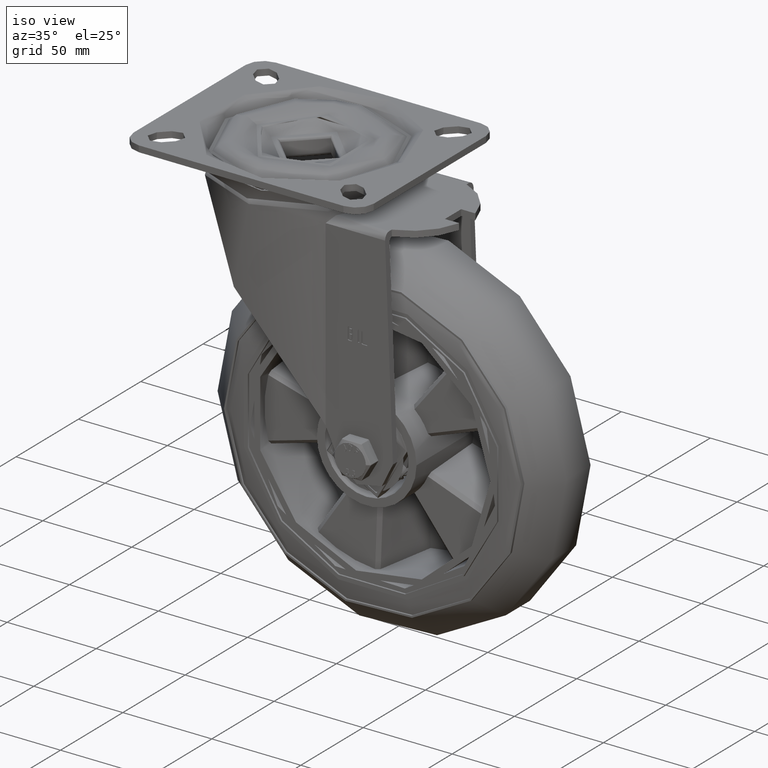
[diagram: clean part render]
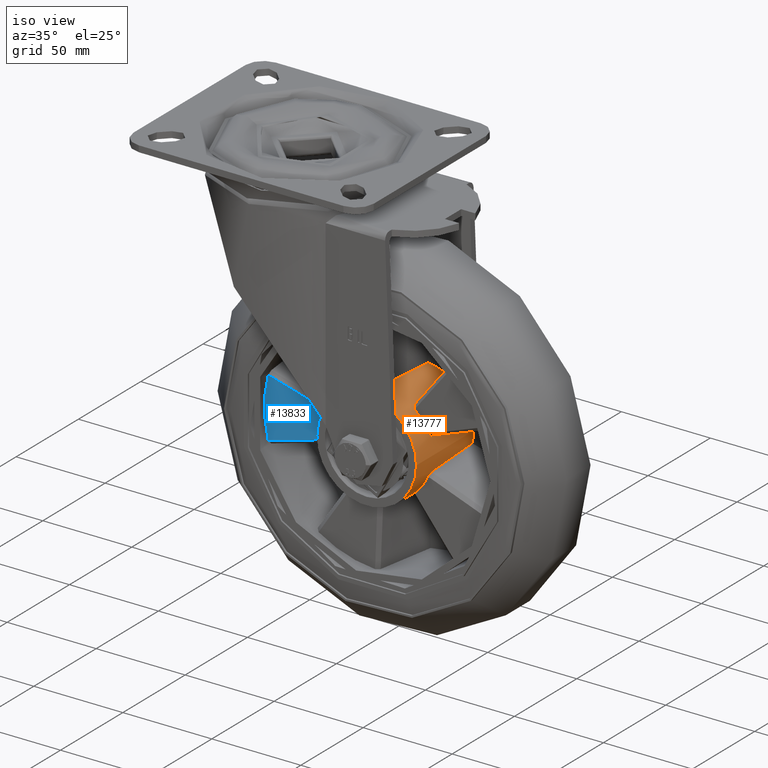
[diagram: same view with the hole feature highlighted: cylindrical wall and planar end face, labeled with their STEP entity ids]
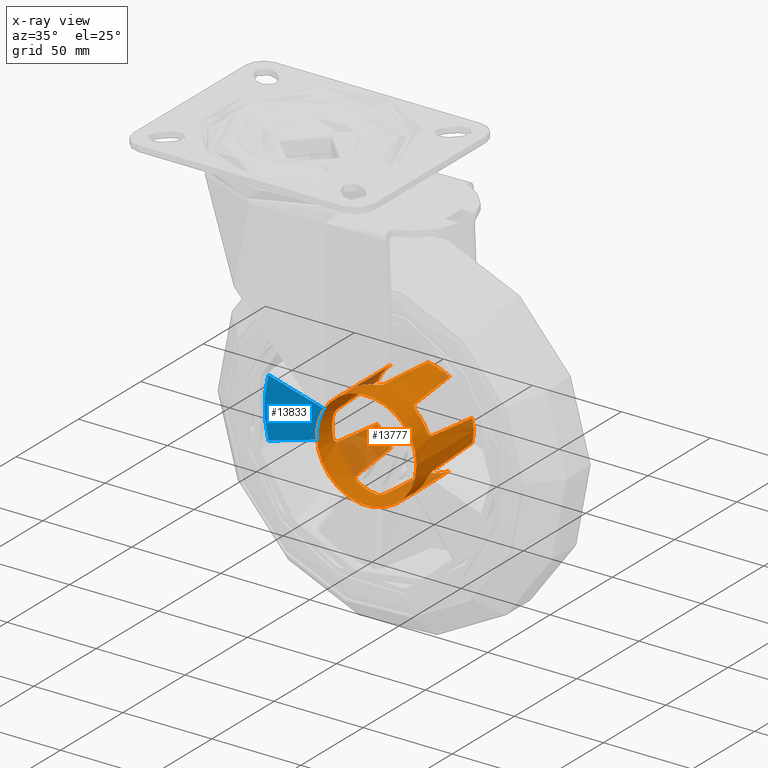
[diagram: x-ray of the same camera — body ghosted, the hole faces saturated]
A machine part, iso view. The highlighted faces form one hole feature of diameter 56 mm: the cylindrical wall (entity #13777, orange) and its adjacent planar end face (entity #13833, blue) — they share a circular edge in the B-rep.
The next image is the same camera in x-ray (body ghosted, the hole faces saturated) — the bore reads through the body.
Wall:
#1374=B_SPLINE_CURVE_WITH_KNOTS('',3,(#23983,#23984,#23985,#23986,#23987,
#23988,#23989),.UNSPECIFIED.,.F.,.F.,(4,3,4),(-0.0355065523448691,-0.0191366703944533,
-0.00369540563655477),.UNSPECIFIED.);
#1375=B_SPLINE_CURVE_WITH_KNOTS('',3,(#23991,#23992,#23993,#23994,#23995,
#23996,#23997,#23998,#23999,#24000),.UNSPECIFIED.,.F.,.F.,(4,2,2,2,4),(0.,
0.0709443199512429,0.148416619684597,0.225894185630976,0.296946894581299),
 .UNSPECIFIED.);
#1376=B_SPLINE_CURVE_WITH_KNOTS('',3,(#24004,#24005,#24006,#24007,#24008,
#24009,#24010,#24011,#24012,#24013),.UNSPECIFIED.,.F.,.F.,(4,2,2,2,4),(8.4978638868772E-11,
0.0709413263589229,0.148423362002564,0.225901291334783,0.296960076767135),
 .UNSPECIFIED.);
#1377=B_SPLINE_CURVE_WITH_KNOTS('',3,(#24015,#24016,#24017,#24018,#24019,
#24020,#24021),.UNSPECIFIED.,.F.,.F.,(4,3,4),(-0.0345787013306948,-0.0193841036322543,
-0.00276710404882036),.UNSPECIFIED.);
#1378=B_SPLINE_CURVE_WITH_KNOTS('',3,(#24025,#24026,#24027,#24028,#24029,
#24030,#24031),.UNSPECIFIED.,.F.,.F.,(4,3,4),(-0.0355065523448954,-0.0191366703947223,
-0.00369540563655434),.UNSPECIFIED.);
#1379=B_SPLINE_CURVE_WITH_KNOTS('',3,(#24033,#24034,#24035,#24036,#24037,
#24038,#24039,#24040,#24041,#24042),.UNSPECIFIED.,.F.,.F.,(4,2,2,2,4),(1.98622527340412E-10,
0.0709443208874662,0.148416619649886,0.225894182805433,0.296946894408632),
 .UNSPECIFIED.);
#1380=B_SPLINE_CURVE_WITH_KNOTS('',3,(#24046,#24047,#24048,#24049,#24050,
#24051,#24052,#24053,#24054,#24055),.UNSPECIFIED.,.F.,.F.,(4,2,2,2,4),(7.32109050376523E-11,
0.0709413262718777,0.148423361868323,0.225901291144999,0.296960076783751),
 .UNSPECIFIED.);
#1381=B_SPLINE_CURVE_WITH_KNOTS('',3,(#24057,#24058,#24059,#24060,#24061,
#24062,#24063),.UNSPECIFIED.,.F.,.F.,(4,3,4),(-0.0360033261767927,-0.0201680024905815,
-0.00419011401342544),.UNSPECIFIED.);
#1382=B_SPLINE_CURVE_WITH_KNOTS('',3,(#24067,#24068,#24069,#24070,#24071,
#24072,#24073),.UNSPECIFIED.,.F.,.F.,(4,3,4),(-0.0355079842542186,-0.01909456198553,
-0.00369692413112095),.UNSPECIFIED.);
#1383=B_SPLINE_CURVE_WITH_KNOTS('',3,(#24075,#24076,#24077,#24078,#24079,
#24080,#24081,#24082,#24083,#24084),.UNSPECIFIED.,.F.,.F.,(4,2,2,2,4),(2.59999848652584E-10,
0.070944320375217,0.148416619660857,0.225894185206572,0.296946894415049),
 .UNSPECIFIED.);
#1384=B_SPLINE_CURVE_WITH_KNOTS('',3,(#24088,#24089,#24090,#24091,#24092,
#24093,#24094,#24095,#24096,#24097),.UNSPECIFIED.,.F.,.F.,(4,2,2,2,4),(7.89132959472521E-11,
0.0709413260763968,0.148423361652627,0.22590129090754,0.296960076760107),
 .UNSPECIFIED.);
#1385=B_SPLINE_CURVE_WITH_KNOTS('',3,(#24099,#24100,#24101,#24102,#24103,
#24104,#24105),.UNSPECIFIED.,.F.,.F.,(4,3,4),(-0.036003326176798,-0.0201680024893143,
-0.00419011401345597),.UNSPECIFIED.);
#1386=B_SPLINE_CURVE_WITH_KNOTS('',3,(#24109,#24110,#24111,#24112,#24113,
#24114,#24115),.UNSPECIFIED.,.F.,.F.,(4,3,4),(-0.0355065523448865,-0.0191366703934272,
-0.00369540563655398),.UNSPECIFIED.);
#1387=B_SPLINE_CURVE_WITH_KNOTS('',3,(#24117,#24118,#24119,#24120,#24121,
#24122,#24123,#24124,#24125,#24126),.UNSPECIFIED.,.F.,.F.,(4,2,2,2,4),(2.4998497788349E-10,
0.0709443203544203,0.148416619670975,0.22589418524382,0.296946894433969),
 .UNSPECIFIED.);
#1388=B_SPLINE_CURVE_WITH_KNOTS('',3,(#24130,#24131,#24132,#24133,#24134,
#24135,#24136,#24137,#24138,#24139),.UNSPECIFIED.,.F.,.F.,(4,2,2,2,4),(6.74432260747033E-11,
0.0709413282051102,0.148423361345513,0.225901290088567,0.296960076838949),
 .UNSPECIFIED.);
#1389=B_SPLINE_CURVE_WITH_KNOTS('',3,(#24141,#24142,#24143,#24144,#24145,
#24146,#24147),.UNSPECIFIED.,.F.,.F.,(4,3,4),(-0.0345787013307198,-0.0193841036325851,
-0.00276710404882058),.UNSPECIFIED.);
#1390=B_SPLINE_CURVE_WITH_KNOTS('',3,(#24151,#24152,#24153,#24154,#24155,
#24156,#24157),.UNSPECIFIED.,.F.,.F.,(4,3,4),(-0.0355065523448942,-0.0191366703940757,
-0.00369540563655314),.UNSPECIFIED.);
#1391=B_SPLINE_CURVE_WITH_KNOTS('',3,(#24159,#24160,#24161,#24162,#24163,
#24164,#24165,#24166,#24167,#24168),.UNSPECIFIED.,.F.,.F.,(4,2,2,2,4),(2.0134717964716E-10,
0.0709443202650988,0.148416619666189,0.225894185313712,0.296946894443185),
 .UNSPECIFIED.);
#1392=B_SPLINE_CURVE_WITH_KNOTS('',3,(#24172,#24173,#24174,#24175,#24176,
#24177,#24178,#24179,#24180,#24181),.UNSPECIFIED.,.F.,.F.,(4,2,2,2,4),(0.,
0.0709413259423618,0.148423361877403,0.225901291535753,0.296960076982357),
 .UNSPECIFIED.);
#1393=B_SPLINE_CURVE_WITH_KNOTS('',3,(#24183,#24184,#24185,#24186,#24187,
#24188,#24189),.UNSPECIFIED.,.F.,.F.,(4,3,4),(-0.0345787013307003,-0.0193841036324443,
-0.00276710404883939),.UNSPECIFIED.);
#2116=FACE_OUTER_BOUND('',#2974,.T.);
#2974=EDGE_LOOP('',(#10309,#10310,#10311,#10312,#10313,#10314,#10315,#10316,
#10317,#10318,#10319,#10320,#10321,#10322,#10323,#10324,#10325,#10326,#10327,
#10328,#10329,#10330,#10331,#10332,#10333,#10334,#10335,#10336,#10337,#10338,
#10339,#10340,#10341,#10342));
#3937=LINE('',#24192,#4768);
#4768=VECTOR('',#16951,28.);
#5588=CIRCLE('',#15046,28.);
#5589=CIRCLE('',#15047,28.);
#5590=CIRCLE('',#15048,28.);
#5591=CIRCLE('',#15049,28.);
#5592=CIRCLE('',#15050,28.);
#5593=CIRCLE('',#15051,28.);
#5594=CIRCLE('',#15052,28.);
#5595=CIRCLE('',#15053,28.);
#5596=CIRCLE('',#15054,28.);
#5597=CIRCLE('',#15055,28.);
#5598=CIRCLE('',#15056,28.);
#5599=CIRCLE('',#15057,28.);
#6313=VERTEX_POINT('',#23979);
#6314=VERTEX_POINT('',#23980);
#6315=VERTEX_POINT('',#23982);
#6316=VERTEX_POINT('',#23990);
#6317=VERTEX_POINT('',#24001);
#6318=VERTEX_POINT('',#24003);
#6319=VERTEX_POINT('',#24014);
#6320=VERTEX_POINT('',#24022);
#6321=VERTEX_POINT('',#24024);
#6322=VERTEX_POINT('',#24032);
#6323=VERTEX_POINT('',#24043);
#6324=VERTEX_POINT('',#24045);
#6325=VERTEX_POINT('',#24056);
#6326=VERTEX_POINT('',#24064);
#6327=VERTEX_POINT('',#24066);
#6328=VERTEX_POINT('',#24074);
#6329=VERTEX_POINT('',#24085);
#6330=VERTEX_POINT('',#24087);
#6331=VERTEX_POINT('',#24098);
#6332=VERTEX_POINT('',#24106);
#6333=VERTEX_POINT('',#24108);
#6334=VERTEX_POINT('',#24116);
#6335=VERTEX_POINT('',#24127);
#6336=VERTEX_POINT('',#24129);
#6337=VERTEX_POINT('',#24140);
#6338=VERTEX_POINT('',#24148);
#6339=VERTEX_POINT('',#24150);
#6340=VERTEX_POINT('',#24158);
#6341=VERTEX_POINT('',#24169);
#6342=VERTEX_POINT('',#24171);
#6343=VERTEX_POINT('',#24182);
#6344=VERTEX_POINT('',#24191);
#7825=EDGE_CURVE('',#6313,#6314,#5588,.T.);
#7826=EDGE_CURVE('',#6315,#6313,#1374,.T.);
#7827=EDGE_CURVE('',#6316,#6315,#1375,.F.);
#7828=EDGE_CURVE('',#6317,#6316,#5589,.T.);
#7829=EDGE_CURVE('',#6318,#6317,#1376,.F.);
#7830=EDGE_CURVE('',#6319,#6318,#1377,.T.);
#7831=EDGE_CURVE('',#6320,#6319,#5590,.T.);
#7832=EDGE_CURVE('',#6321,#6320,#1378,.T.);
#7833=EDGE_CURVE('',#6322,#6321,#1379,.F.);
#7834=EDGE_CURVE('',#6323,#6322,#5591,.T.);
#7835=EDGE_CURVE('',#6324,#6323,#1380,.F.);
#7836=EDGE_CURVE('',#6325,#6324,#1381,.T.);
#7837=EDGE_CURVE('',#6326,#6325,#5592,.T.);
#7838=EDGE_CURVE('',#6327,#6326,#1382,.T.);
#7839=EDGE_CURVE('',#6328,#6327,#1383,.F.);
#7840=EDGE_CURVE('',#6329,#6328,#5593,.T.);
#7841=EDGE_CURVE('',#6330,#6329,#1384,.F.);
#7842=EDGE_CURVE('',#6331,#6330,#1385,.T.);
#7843=EDGE_CURVE('',#6332,#6331,#5594,.T.);
#7844=EDGE_CURVE('',#6333,#6332,#1386,.T.);
#7845=EDGE_CURVE('',#6334,#6333,#1387,.F.);
#7846=EDGE_CURVE('',#6335,#6334,#5595,.T.);
#7847=EDGE_CURVE('',#6336,#6335,#1388,.F.);
#7848=EDGE_CURVE('',#6337,#6336,#1389,.T.);
#7849=EDGE_CURVE('',#6338,#6337,#5596,.T.);
#7850=EDGE_CURVE('',#6339,#6338,#1390,.T.);
#7851=EDGE_CURVE('',#6340,#6339,#1391,.F.);
#7852=EDGE_CURVE('',#6341,#6340,#5597,.T.);
#7853=EDGE_CURVE('',#6342,#6341,#1392,.F.);
#7854=EDGE_CURVE('',#6343,#6342,#1393,.T.);
#7855=EDGE_CURVE('',#6314,#6343,#5598,.T.);
#7856=EDGE_CURVE('',#6314,#6344,#3937,.T.);
#7857=EDGE_CURVE('',#6344,#6344,#5599,.T.);
#10309=ORIENTED_EDGE('',*,*,#7825,.F.);
#10310=ORIENTED_EDGE('',*,*,#7826,.F.);
#10311=ORIENTED_EDGE('',*,*,#7827,.F.);
#10312=ORIENTED_EDGE('',*,*,#7828,.F.);
#10313=ORIENTED_EDGE('',*,*,#7829,.F.);
#10314=ORIENTED_EDGE('',*,*,#7830,.F.);
#10315=ORIENTED_EDGE('',*,*,#7831,.F.);
#10316=ORIENTED_EDGE('',*,*,#7832,.F.);
#10317=ORIENTED_EDGE('',*,*,#7833,.F.);
#10318=ORIENTED_EDGE('',*,*,#7834,.F.);
#10319=ORIENTED_EDGE('',*,*,#7835,.F.);
#10320=ORIENTED_EDGE('',*,*,#7836,.F.);
#10321=ORIENTED_EDGE('',*,*,#7837,.F.);
#10322=ORIENTED_EDGE('',*,*,#7838,.F.);
#10323=ORIENTED_EDGE('',*,*,#7839,.F.);
#10324=ORIENTED_EDGE('',*,*,#7840,.F.);
#10325=ORIENTED_EDGE('',*,*,#7841,.F.);
#10326=ORIENTED_EDGE('',*,*,#7842,.F.);
#10327=ORIENTED_EDGE('',*,*,#7843,.F.);
#10328=ORIENTED_EDGE('',*,*,#7844,.F.);
#10329=ORIENTED_EDGE('',*,*,#7845,.F.);
#10330=ORIENTED_EDGE('',*,*,#7846,.F.);
#10331=ORIENTED_EDGE('',*,*,#7847,.F.);
#10332=ORIENTED_EDGE('',*,*,#7848,.F.);
#10333=ORIENTED_EDGE('',*,*,#7849,.F.);
#10334=ORIENTED_EDGE('',*,*,#7850,.F.);
#10335=ORIENTED_EDGE('',*,*,#7851,.F.);
#10336=ORIENTED_EDGE('',*,*,#7852,.F.);
#10337=ORIENTED_EDGE('',*,*,#7853,.F.);
#10338=ORIENTED_EDGE('',*,*,#7854,.F.);
#10339=ORIENTED_EDGE('',*,*,#7855,.F.);
#10340=ORIENTED_EDGE('',*,*,#7856,.T.);
#10341=ORIENTED_EDGE('',*,*,#7857,.T.);
#10342=ORIENTED_EDGE('',*,*,#7856,.F.);
#13462=CYLINDRICAL_SURFACE('',#15045,28.);
#13777=ADVANCED_FACE('',(#2116),#13462,.T.);
#15045=AXIS2_PLACEMENT_3D('',#23978,#16927,#16928);
#15046=AXIS2_PLACEMENT_3D('',#23981,#16929,#16930);
#15047=AXIS2_PLACEMENT_3D('',#24002,#16931,#16932);
#15048=AXIS2_PLACEMENT_3D('',#24023,#16933,#16934);
#15049=AXIS2_PLACEMENT_3D('',#24044,#16935,#16936);
#15050=AXIS2_PLACEMENT_3D('',#24065,#16937,#16938);
#15051=AXIS2_PLACEMENT_3D('',#24086,#16939,#16940);
#15052=AXIS2_PLACEMENT_3D('',#24107,#16941,#16942);
#15053=AXIS2_PLACEMENT_3D('',#24128,#16943,#16944);
#15054=AXIS2_PLACEMENT_3D('',#24149,#16945,#16946);
#15055=AXIS2_PLACEMENT_3D('',#24170,#16947,#16948);
#15056=AXIS2_PLACEMENT_3D('',#24190,#16949,#16950);
#15057=AXIS2_PLACEMENT_3D('',#24193,#16952,#16953);
#16927=DIRECTION('center_axis',(-3.5232211670514E-15,1.,0.));
#16928=DIRECTION('ref_axis',(-1.,-3.5232211670514E-15,0.));
#16929=DIRECTION('center_axis',(-4.48275391881041E-15,1.,0.));
#16930=DIRECTION('ref_axis',(-1.,-4.48275391881041E-15,0.));
#16931=DIRECTION('center_axis',(-4.48275391881041E-15,1.,0.));
#16932=DIRECTION('ref_axis',(-1.,-4.48275391881041E-15,0.));
#16933=DIRECTION('center_axis',(-4.48275391881041E-15,1.,0.));
#16934=DIRECTION('ref_axis',(-1.,-4.48275391881041E-15,0.));
#16935=DIRECTION('center_axis',(-4.48275391881041E-15,1.,0.));
#16936=DIRECTION('ref_axis',(-1.,-4.48275391881041E-15,0.));
#16937=DIRECTION('center_axis',(-4.48275391881041E-15,1.,0.));
#16938=DIRECTION('ref_axis',(-1.,-4.48275391881041E-15,0.));
#16939=DIRECTION('center_axis',(-4.48275391881041E-15,1.,0.));
#16940=DIRECTION('ref_axis',(-1.,-4.48275391881041E-15,0.));
#16941=DIRECTION('center_axis',(-4.48275391881041E-15,1.,0.));
#16942=DIRECTION('ref_axis',(-1.,-4.48275391881041E-15,0.));
#16943=DIRECTION('center_axis',(-4.48275391881041E-15,1.,0.));
#16944=DIRECTION('ref_axis',(-1.,-4.48275391881041E-15,0.));
#16945=DIRECTION('center_axis',(-4.48275391881041E-15,1.,0.));
#16946=DIRECTION('ref_axis',(-1.,-4.48275391881041E-15,0.));
#16947=DIRECTION('center_axis',(-4.48275391881041E-15,1.,0.));
#16948=DIRECTION('ref_axis',(-1.,-4.48275391881041E-15,0.));
#16949=DIRECTION('center_axis',(-4.48275391881041E-15,1.,0.));
#16950=DIRECTION('ref_axis',(-1.,-4.48275391881041E-15,0.));
#16951=DIRECTION('',(3.5232211670514E-15,-1.,0.));
#16952=DIRECTION('center_axis',(-3.73930100053464E-15,1.,0.));
#16953=DIRECTION('ref_axis',(-1.,-3.73930100053464E-15,0.));
#23978=CARTESIAN_POINT('Origin',(-6.93889390390723E-15,-8.46064909600294E-16,
0.));
#23979=CARTESIAN_POINT('',(27.2679969599278,15.7500000000002,6.36052999311864));
#23980=CARTESIAN_POINT('',(27.9999999999999,15.7500000000002,-3.42901103761259E-15));
#23981=CARTESIAN_POINT('Origin',(-6.2429627284967E-14,15.7500000000001,
0.));
#23982=CARTESIAN_POINT('',(26.5074699500782,-15.9237887332132,9.01964727206062));
#23983=CARTESIAN_POINT('Ctrl Pts',(26.5074699523126,-15.9237887332058,9.0196472729109));
#23984=CARTESIAN_POINT('Ctrl Pts',(26.6602019204636,-10.48971771073,8.57078962747796));
#23985=CARTESIAN_POINT('Ctrl Pts',(26.8016659237505,-5.06039777119971,8.11766188461249));
#23986=CARTESIAN_POINT('Ctrl Pts',(26.9316547517656,0.375471215640353,7.66067690343688));
#23987=CARTESIAN_POINT('Ctrl Pts',(27.0542696805128,5.50297869976824,7.22961539022074));
#23988=CARTESIAN_POINT('Ctrl Pts',(27.1663952189949,10.6246603127595,6.79610327543993));
#23989=CARTESIAN_POINT('Ctrl Pts',(27.2679969598981,15.7500000000098,6.3605299932242));
#23990=CARTESIAN_POINT('',(25.7988986698652,-17.7499999999998,10.8819496149371));
#23991=CARTESIAN_POINT('Ctrl Pts',(26.5074699489457,-15.9237887332118,9.01964727169215));
#23992=CARTESIAN_POINT('Ctrl Pts',(26.5008484831435,-16.1593747616505,9.03910682487439));
#23993=CARTESIAN_POINT('Ctrl Pts',(26.4808935861931,-16.3897171377057,9.09794494059109));
#23994=CARTESIAN_POINT('Ctrl Pts',(26.4110862763734,-16.8393776378935,9.29875459104724));
#23995=CARTESIAN_POINT('Ctrl Pts',(26.359567259628,-17.0495047023181,9.44507832783477));
#23996=CARTESIAN_POINT('Ctrl Pts',(26.2286071571999,-17.3988418451501,9.80288030432846));
#23997=CARTESIAN_POINT('Ctrl Pts',(26.1501746905146,-17.5351621100194,10.0113757846875));
#23998=CARTESIAN_POINT('Ctrl Pts',(25.9795054504162,-17.7081021347469,10.4458199190304));
#23999=CARTESIAN_POINT('Ctrl Pts',(25.8909498718309,-17.749999999997,10.6637148577487));
#24000=CARTESIAN_POINT('Ctrl Pts',(25.7988986698652,-17.7499999999998,10.8819496149371));
#24001=CARTESIAN_POINT('',(18.3216472164271,-17.7499999999998,21.1735033302662));
#24002=CARTESIAN_POINT('Origin',(5.55982818112549E-14,-17.7499999999999,
0.));
#24003=CARTESIAN_POINT('',(16.7694530065388,-15.9237887330092,22.4228777336603));
#24004=CARTESIAN_POINT('Ctrl Pts',(18.3216472164271,-17.7499999999998,21.1735033302662));
#24005=CARTESIAN_POINT('Ctrl Pts',(18.142828596241,-17.7499999998991,21.3282368962554));
#24006=CARTESIAN_POINT('Ctrl Pts',(17.9632527973747,-17.7082380863569,21.4795546283645));
#24007=CARTESIAN_POINT('Ctrl Pts',(17.6030205284596,-17.5356944008701,21.7759724675705));
#24008=CARTESIAN_POINT('Ctrl Pts',(17.4289062252843,-17.3994960351728,21.9150533419108));
#24009=CARTESIAN_POINT('Ctrl Pts',(17.128926723782,-17.0503607096989,22.1503092671107));
#24010=CARTESIAN_POINT('Ctrl Pts',(17.0055930806771,-16.8403139176863,22.2445981781619));
#24011=CARTESIAN_POINT('Ctrl Pts',(16.8358620558324,-16.3904336315629,22.3732905995227));
#24012=CARTESIAN_POINT('Ctrl Pts',(16.7859397250103,-16.1597429615603,22.4105477708166));
#24013=CARTESIAN_POINT('Ctrl Pts',(16.7694530092503,-15.9237887327171,22.4228777316951));
#24014=CARTESIAN_POINT('',(14.4754979602283,15.7500000000001,23.9678943339507));
#24015=CARTESIAN_POINT('Ctrl Pts',(14.4754979603195,15.7500000000097,23.9678943338897));
#24016=CARTESIAN_POINT('Ctrl Pts',(14.8522210483375,10.7067906385833,23.7403710864024));
#24017=CARTESIAN_POINT('Ctrl Pts',(15.2239138374146,5.66690495626863,23.5037641294834));
#24018=CARTESIAN_POINT('Ctrl Pts',(15.5902322289371,0.621306777304809,23.2582169852079));
#24019=CARTESIAN_POINT('Ctrl Pts',(15.9908425432174,-4.89662166686992,22.9896835975449));
#24020=CARTESIAN_POINT('Ctrl Pts',(16.3840309638125,-10.407713676511,22.7111242933034));
#24021=CARTESIAN_POINT('Ctrl Pts',(16.7694530067511,-15.9237887332247,22.4228777380672));
#24022=CARTESIAN_POINT('',(2.37705096613578,15.7500000000001,27.8989180561611));
#24023=CARTESIAN_POINT('Origin',(-6.2429627284967E-14,15.7500000000001,
0.));
#24024=CARTESIAN_POINT('',(-0.386935623292789,-15.9237887329715,27.9973263155638));
#24025=CARTESIAN_POINT('Ctrl Pts',(-0.386935620439498,-15.9237887332248,
27.9973263192419));
#24026=CARTESIAN_POINT('Ctrl Pts',(0.0871501418745737,-10.4897177108271,
28.0038784123045));
#24027=CARTESIAN_POINT('Ctrl Pts',(0.561815015541613,-5.06039777137938,
27.9983945012839));
#24028=CARTESIAN_POINT('Ctrl Pts',(1.03660231666599,0.375471215377623,27.9808050978565));
#24029=CARTESIAN_POINT('Ctrl Pts',(1.48445627448882,5.50297869959266,27.9642134916319));
#24030=CARTESIAN_POINT('Ctrl Pts',(1.93139949304602,10.6246603126708,27.9368886049135));
#24031=CARTESIAN_POINT('Ctrl Pts',(2.37705096602619,15.7500000000097,27.8989180561653));
#24032=CARTESIAN_POINT('',(-2.37705096647165,-17.7499999999999,27.8989180560978));
#24033=CARTESIAN_POINT('Ctrl Pts',(-0.386935627184629,-15.923788732632,
27.9973263155683));
#24034=CARTESIAN_POINT('Ctrl Pts',(-0.407488906682684,-16.159374763823,
27.9970422600123));
#24035=CARTESIAN_POINT('Ctrl Pts',(-0.469613682125127,-16.3897171407494,
27.9962460029042));
#24036=CARTESIAN_POINT('Ctrl Pts',(-0.68216665395521,-16.8393776405123,
27.991908900583));
#24037=CARTESIAN_POINT('Ctrl Pts',(-0.837249047056626,-17.0495047025281,
27.9881279253541));
#24038=CARTESIAN_POINT('Ctrl Pts',(-1.21800783586155,-17.3988418379837,
27.9741443582602));
#24039=CARTESIAN_POINT('Ctrl Pts',(-1.44053577706101,-17.5351620998243,
27.9639792968902));
#24040=CARTESIAN_POINT('Ctrl Pts',(-1.90645639528561,-17.7081021313866,
27.935913825132));
#24041=CARTESIAN_POINT('Ctrl Pts',(-2.14105198364606,-17.7499999999197,
27.9190257036436));
#24042=CARTESIAN_POINT('Ctrl Pts',(-2.37705096647458,-17.7499999999999,
27.8989180561322));
#24043=CARTESIAN_POINT('',(-14.475497959957,-17.75,23.9678943341997));
#24044=CARTESIAN_POINT('Origin',(5.55982818112549E-14,-17.7499999999999,
0.));
#24045=CARTESIAN_POINT('',(-16.1433780165992,-15.9237887319604,22.8777478423053));
#24046=CARTESIAN_POINT('Ctrl Pts',(-14.4754979599193,-17.75,23.9678943341373));
#24047=CARTESIAN_POINT('Ctrl Pts',(-14.6779163184463,-17.7499999999132,
23.8456430218168));
#24048=CARTESIAN_POINT('Ctrl Pts',(-14.8773200070932,-17.7082380864355,
23.7216160389994));
#24049=CARTESIAN_POINT('Ctrl Pts',(-15.2705480172962,-17.5356944012161,
23.4706129422546));
#24050=CARTESIAN_POINT('Ctrl Pts',(-15.4566260676728,-17.399496035672,23.347998753483));
#24051=CARTESIAN_POINT('Ctrl Pts',(-15.7730665120906,-17.0503607105517,
23.1353993728757));
#24052=CARTESIAN_POINT('Ctrl Pts',(-15.900852786988,-16.8403139187523,23.0472389838778));
#24053=CARTESIAN_POINT('Ctrl Pts',(-16.075696324279,-16.3904336322816,22.9255833318006));
#24054=CARTESIAN_POINT('Ctrl Pts',(-16.1265568485369,-16.1597429612571,
22.8896174727894));
#24055=CARTESIAN_POINT('Ctrl Pts',(-16.1433780132827,-15.9237887317413,
22.877747841959));
#24056=CARTESIAN_POINT('',(-18.3216472164271,15.75,21.1735033302661));
#24057=CARTESIAN_POINT('Ctrl Pts',(-18.3216472163409,15.7500000000096,21.173503330334));
#24058=CARTESIAN_POINT('Ctrl Pts',(-17.9748259479422,10.4943346513522,21.4736113528245));
#24059=CARTESIAN_POINT('Ctrl Pts',(-17.6203210924994,5.24243940032904,21.7654660484705));
#24060=CARTESIAN_POINT('Ctrl Pts',(-17.2584088496564,-0.0159133482190573,
22.0487487689199));
#24061=CARTESIAN_POINT('Ctrl Pts',(-16.8932383252486,-5.32160683795857,
22.3345818724635));
#24062=CARTESIAN_POINT('Ctrl Pts',(-16.5214328281474,-10.6207300239485,
22.610978533267));
#24063=CARTESIAN_POINT('Ctrl Pts',(-16.1433780231538,-15.9237887323881,
22.8777478430911));
#24064=CARTESIAN_POINT('',(-25.7988986698652,15.75,10.881949614937));
#24065=CARTESIAN_POINT('Origin',(-6.2429627284967E-14,15.7500000000001,
0.));
#24066=CARTESIAN_POINT('',(-26.7466093147404,-15.9237887329229,8.28365198211445));
#24067=CARTESIAN_POINT('Ctrl Pts',(-26.746609317055,-15.9237887332253,8.28365198645958));
#24068=CARTESIAN_POINT('Ctrl Pts',(-26.6059656937682,-10.4752103789686,
8.73776817333504));
#24069=CARTESIAN_POINT('Ctrl Pts',(-26.453635183499,-5.03145283799282,9.18869515858751));
#24070=CARTESIAN_POINT('Ctrl Pts',(-26.289693994027,0.418874525426292,9.63597363979143));
#24071=CARTESIAN_POINT('Ctrl Pts',(-26.1358987023695,5.53189517133994,10.055571208227));
#24072=CARTESIAN_POINT('Ctrl Pts',(-25.9722337523319,10.6391357282788,10.471007327278));
#24073=CARTESIAN_POINT('Ctrl Pts',(-25.7988986699031,15.7500000000095,10.8819496148341));
#24074=CARTESIAN_POINT('',(-27.2679969601238,-17.75,6.36052999276597));
#24075=CARTESIAN_POINT('Ctrl Pts',(-26.746609316164,-15.9237887325224,8.28365197775027));
#24076=CARTESIAN_POINT('Ctrl Pts',(-26.752690475827,-16.159374761883,8.26401686969253));
#24077=CARTESIAN_POINT('Ctrl Pts',(-26.7711308013589,-16.3897171365196,
8.20468664129158));
#24078=CARTESIAN_POINT('Ctrl Pts',(-26.8326884519957,-16.8393776370091,
8.00119651554907));
#24079=CARTESIAN_POINT('Ctrl Pts',(-26.8770156260862,-17.0495047008731,
7.85253600872906));
#24080=CARTESIAN_POINT('Ctrl Pts',(-26.9813774019372,-17.3988418432098,
7.486091714738));
#24081=CARTESIAN_POINT('Ctrl Pts',(-27.040474771675,-17.5351621081318,7.27131388185639));
#24082=CARTESIAN_POINT('Ctrl Pts',(-27.1577603110837,-17.708102134219,6.81952433202851));
#24083=CARTESIAN_POINT('Ctrl Pts',(-27.2141927746836,-17.7499999999061,
6.59119196017969));
#24084=CARTESIAN_POINT('Ctrl Pts',(-27.267996960016,-17.7500000000001,6.36052999274081));
#24085=CARTESIAN_POINT('',(-27.2679969600785,-17.75,-6.36052999275316));
#24086=CARTESIAN_POINT('Origin',(5.55982818112549E-14,-17.7499999999999,
0.));
#24087=CARTESIAN_POINT('',(-26.7466093174251,-15.9237887318943,-8.28365198104475));
#24088=CARTESIAN_POINT('Ctrl Pts',(-27.2679969600165,-17.7500000000001,
-6.36052999273869));
#24089=CARTESIAN_POINT('Ctrl Pts',(-27.2142797657171,-17.7499999999065,
-6.59081902408178));
#24090=CARTESIAN_POINT('Ctrl Pts',(-27.1579422242228,-17.7082380866623,
-6.81878964631596));
#24091=CARTESIAN_POINT('Ctrl Pts',(-27.0407382314292,-17.5356944021164,
-7.27033592986028));
#24092=CARTESIAN_POINT('Ctrl Pts',(-26.981626488045,-17.3994960367987,-7.48519654038437));
#24093=CARTESIAN_POINT('Ctrl Pts',(-26.8772179367423,-17.0503607120667,
-7.85184610892208));
#24094=CARTESIAN_POINT('Ctrl Pts',(-26.8328605548652,-16.8403139204441,
-8.00062113692661));
#24095=CARTESIAN_POINT('Ctrl Pts',(-26.7711887784139,-16.3904336335587,
-8.20450088697621));
#24096=CARTESIAN_POINT('Ctrl Pts',(-26.7526999801083,-16.1597429618992,
-8.26398618186354));
#24097=CARTESIAN_POINT('Ctrl Pts',(-26.7466093161417,-15.9237887316588,
-8.28365197782226));
#24098=CARTESIAN_POINT('',(-25.7988986698652,15.75,-10.8819496149371));
#24099=CARTESIAN_POINT('Ctrl Pts',(-25.7988986699031,15.7500000000095,-10.8819496148341));
#24100=CARTESIAN_POINT('Ctrl Pts',(-25.9771446943534,10.4943346509347,-10.4593645084024));
#24101=CARTESIAN_POINT('Ctrl Pts',(-26.1451669795513,5.24243939949126,-10.0320222946979));
#24102=CARTESIAN_POINT('Ctrl Pts',(-26.3027478232886,-0.0159133494786369,
-9.60028412294832));
#24103=CARTESIAN_POINT('Ctrl Pts',(-26.4617473610851,-5.32160683878645,
-9.16465902963629));
#24104=CARTESIAN_POINT('Ctrl Pts',(-26.6097219892055,-10.6207300243462,
-8.72563972348254));
#24105=CARTESIAN_POINT('Ctrl Pts',(-26.7466093201019,-15.9237887323548,
-8.28365198739931));
#24106=CARTESIAN_POINT('',(-18.321647216427,15.75,-21.1735033302662));
#24107=CARTESIAN_POINT('Origin',(-6.2429627284967E-14,15.7500000000001,
0.));
#24108=CARTESIAN_POINT('',(-16.1433780166806,-15.9237887329447,-22.8777478394829));
#24109=CARTESIAN_POINT('Ctrl Pts',(-16.1433780214056,-15.9237887332249,
-22.8777478406088));
#24110=CARTESIAN_POINT('Ctrl Pts',(-16.5307726836131,-10.489717710401,-22.6043879758135));
#24111=CARTESIAN_POINT('Ctrl Pts',(-16.9115612710494,-5.0603977705256,-22.3209503860563));
#24112=CARTESIAN_POINT('Ctrl Pts',(-17.2853334744696,0.375471216660717,
-22.0276472861614));
#24113=CARTESIAN_POINT('Ctrl Pts',(-17.6379026358652,5.50297870044789,-21.7509824431943));
#24114=CARTESIAN_POINT('Ctrl Pts',(-17.9834261297356,10.6246603130996,-21.4661695130127));
#24115=CARTESIAN_POINT('Ctrl Pts',(-18.3216472163409,15.7500000000096,-21.173503330334));
#24116=CARTESIAN_POINT('',(-14.4754979599804,-17.75,-23.9678943342347));
#24117=CARTESIAN_POINT('Ctrl Pts',(-16.1433780132235,-15.9237887325716,
-22.8777478420008));
#24118=CARTESIAN_POINT('Ctrl Pts',(-16.1265830973704,-16.1593747618763,
-22.8895989506497));
#24119=CARTESIAN_POINT('Ctrl Pts',(-16.0758550709475,-16.3897171365432,
-22.9254707913087));
#24120=CARTESIAN_POINT('Ctrl Pts',(-15.9013468209631,-16.8393776370285,
-23.046897503173));
#24121=CARTESIAN_POINT('Ctrl Pts',(-15.7736601272732,-17.0495047009401,
-23.1349937739905));
#24122=CARTESIAN_POINT('Ctrl Pts',(-15.4574004557682,-17.3988418433259,
-23.3474852354014));
#24123=CARTESIAN_POINT('Ctrl Pts',(-15.2713966897497,-17.5351621082513,
-23.4700601744098));
#24124=CARTESIAN_POINT('Ctrl Pts',(-14.8779625192391,-17.7081021342538,
-23.7212159997226));
#24125=CARTESIAN_POINT('Ctrl Pts',(-14.6782441194134,-17.7499999999128,
-23.8454450452167));
#24126=CARTESIAN_POINT('Ctrl Pts',(-14.4754979599209,-17.75,-23.9678943341363));
#24127=CARTESIAN_POINT('',(-2.37705096647099,-17.7499999999999,-27.8989180560819));
#24128=CARTESIAN_POINT('Origin',(5.55982818112549E-14,-17.7499999999999,
0.));
#24129=CARTESIAN_POINT('',(-0.386935623292757,-15.9237887329715,-27.9973263155638));
#24130=CARTESIAN_POINT('Ctrl Pts',(-2.37705096647527,-17.7499999999999,
-27.8989180561322));
#24131=CARTESIAN_POINT('Ctrl Pts',(-2.14143354953726,-17.7499999999199,
-27.918993193366));
#24132=CARTESIAN_POINT('Ctrl Pts',(-1.90721133891027,-17.7082380841476,
-27.9358598043136));
#24133=CARTESIAN_POINT('Ctrl Pts',(-1.44154728072713,-17.5356943951087,
-27.9639276580905));
#24134=CARTESIAN_POINT('Ctrl Pts',(-1.21893617156422,-17.3994960332822,
-27.974104629032));
#24135=CARTESIAN_POINT('Ctrl Pts',(-0.837967700204139,-17.0503607161118,
-27.9881071433989));
#24136=CARTESIAN_POINT('Ctrl Pts',(-0.682767055942724,-16.8403139265681,
-27.9918947783262));
#24137=CARTESIAN_POINT('Ctrl Pts',(-0.469808261423242,-16.3904336398091,
-27.9962437411135));
#24138=CARTESIAN_POINT('Ctrl Pts',(-0.407521029795875,-16.1597429657323,
-27.9970418160565));
#24139=CARTESIAN_POINT('Ctrl Pts',(-0.386935627184598,-15.923788732632,
-27.9973263155683));
#24140=CARTESIAN_POINT('',(2.37705096613583,15.7500000000001,-27.8989180561611));
#24141=CARTESIAN_POINT('Ctrl Pts',(2.37705096602623,15.7500000000097,-27.8989180561653));
#24142=CARTESIAN_POINT('Ctrl Pts',(1.93854077622868,10.706790638688,-27.9362801576671));
#24143=CARTESIAN_POINT('Ctrl Pts',(1.49876091332119,5.66690495647921,-27.9633366483349));
#24144=CARTESIAN_POINT('Ctrl Pts',(1.05807411908906,0.621306777621753,-27.9800013838763));
#24145=CARTESIAN_POINT('Ctrl Pts',(0.576133601688929,-4.8966216666575,-27.9982261443509));
#24146=CARTESIAN_POINT('Ctrl Pts',(0.0943044365049435,-10.4077136764028,
-28.0039772882765));
#24147=CARTESIAN_POINT('Ctrl Pts',(-0.386935620440477,-15.9237887332248,
-27.997326319268));
#24148=CARTESIAN_POINT('',(14.4754979602283,15.7500000000001,-23.9678943339507));
#24149=CARTESIAN_POINT('Origin',(-6.2429627284967E-14,15.7500000000001,
0.));
#24150=CARTESIAN_POINT('',(16.7694530065388,-15.9237887330092,-22.4228777336603));
#24151=CARTESIAN_POINT('Ctrl Pts',(16.769453006735,-15.9237887332247,-22.4228777380467));
#24152=CARTESIAN_POINT('Ctrl Pts',(16.3897607918907,-10.4897177106158,-22.7068391121041));
#24153=CARTESIAN_POINT('Ctrl Pts',(16.0025254804229,-5.06039777095384,-22.9814035474261));
#24154=CARTESIAN_POINT('Ctrl Pts',(15.6080756931524,0.375471216018202,-23.2462463947188));
#24155=CARTESIAN_POINT('Ctrl Pts',(15.2360019288399,5.50297870001961,-23.496065454897));
#24156=CARTESIAN_POINT('Ctrl Pts',(14.8583561040884,10.6246603128848,-23.7366657896422));
#24157=CARTESIAN_POINT('Ctrl Pts',(14.4754979603195,15.7500000000097,-23.9678943338896));
#24158=CARTESIAN_POINT('',(18.3216472164271,-17.7499999999998,-21.1735033302661));
#24159=CARTESIAN_POINT('Ctrl Pts',(16.7694530092503,-15.9237887327171,-22.4228777316951));
#24160=CARTESIAN_POINT('Ctrl Pts',(16.7859139979689,-16.1593747618348,-22.4105670113627));
#24161=CARTESIAN_POINT('Ctrl Pts',(16.8357059682476,-16.3897171367525,-22.3734067995016));
#24162=CARTESIAN_POINT('Ctrl Pts',(17.005115648955,-16.8393776371839,-22.2449625085779));
#24163=CARTESIAN_POINT('Ctrl Pts',(17.1283575398878,-17.049504701217,-22.1507484911725));
#24164=CARTESIAN_POINT('Ctrl Pts',(17.4281785424685,-17.3988418437143,-21.91563114216));
#24165=CARTESIAN_POINT('Ctrl Pts',(17.6022325618644,-17.5351621086339,-21.7766087875105));
#24166=CARTESIAN_POINT('Ctrl Pts',(17.9626737910373,-17.7081021343621,-21.4800420741227));
#24167=CARTESIAN_POINT('Ctrl Pts',(18.1425390136354,-17.7499999998989,-21.3284874750216));
#24168=CARTESIAN_POINT('Ctrl Pts',(18.3216472164271,-17.7499999999998,-21.1735033302661));
#24169=CARTESIAN_POINT('',(25.7988986698652,-17.7499999999998,-10.8819496149371));
#24170=CARTESIAN_POINT('Origin',(5.55982818112549E-14,-17.7499999999999,
0.));
#24171=CARTESIAN_POINT('',(26.507469950084,-15.9237887332131,-9.0196472720627));
#24172=CARTESIAN_POINT('Ctrl Pts',(25.7988986698652,-17.7499999999998,-10.8819496149371));
#24173=CARTESIAN_POINT('Ctrl Pts',(25.8908010430226,-17.749999999997,-10.6640677007118));
#24174=CARTESIAN_POINT('Ctrl Pts',(25.9792207843931,-17.7082380869109,-10.4465212166819));
#24175=CARTESIAN_POINT('Ctrl Pts',(26.1498130089059,-17.5356944029185,-10.0123218203106));
#24176=CARTESIAN_POINT('Ctrl Pts',(26.2282825024604,-17.3994960374209,-9.80375092299209));
#24177=CARTESIAN_POINT('Ctrl Pts',(26.3593254199206,-17.0503607118508,-9.44575538241858));
#24178=CARTESIAN_POINT('Ctrl Pts',(26.4108873118291,-16.84031391954,-9.29932124058243));
#24179=CARTESIAN_POINT('Ctrl Pts',(26.4808313070855,-16.390433633389,-9.09812929670108));
#24180=CARTESIAN_POINT('Ctrl Pts',(26.5008381343768,-16.159742961825,-9.03913723843889));
#24181=CARTESIAN_POINT('Ctrl Pts',(26.5074699489457,-15.9237887332117,-9.01964727169207));
#24182=CARTESIAN_POINT('',(27.2679969599279,15.7500000000002,-6.36052999311863));
#24183=CARTESIAN_POINT('Ctrl Pts',(27.2679969598981,15.7500000000098,-6.36052999322419));
#24184=CARTESIAN_POINT('Ctrl Pts',(27.1680233291389,10.7067906386459,-6.78912349100618));
#24185=CARTESIAN_POINT('Ctrl Pts',(27.0578561294732,5.66690495639314,-7.21573991078795));
#24186=CARTESIAN_POINT('Ctrl Pts',(26.9375255261867,0.621306777491579,-7.64000764458039));
#24187=CARTESIAN_POINT('Ctrl Pts',(26.8059304932404,-4.89662166673884,-8.10399207482135));
#24188=CARTESIAN_POINT('Ctrl Pts',(26.662506755721,-10.4077136764354,-8.5640160433167));
#24189=CARTESIAN_POINT('Ctrl Pts',(26.5074699523371,-15.9237887332056,-9.01964727291992));
#24190=CARTESIAN_POINT('Origin',(-6.2429627284967E-14,15.7500000000001,
0.));
#24191=CARTESIAN_POINT('',(28.0000000000001,-29.9999999999999,-3.42901103761259E-15));
#24192=CARTESIAN_POINT('',(28.,9.78041277678389E-14,-3.42901103761259E-15));
#24193=CARTESIAN_POINT('Origin',(9.87577411076348E-14,-30.,0.));
End face:
#1004=PLANE('',#15084);
#1420=B_SPLINE_CURVE_WITH_KNOTS('',3,(#27251,#27252,#27253,#27254,#27255,
#27256,#27257,#27258,#27259,#27260,#27261,#27262,#27263,#27264,#27265,#27266),
 .UNSPECIFIED.,.F.,.F.,(4,2,2,2,2,2,2,4),(5.63375231610232E-6,0.00362204274253389,
0.0127799886328436,0.0185037048142872,0.0220810274276894,0.0256583500410916,
0.0313820662225352,0.0380227473806273),.UNSPECIFIED.);
#1422=B_SPLINE_CURVE_WITH_KNOTS('',3,(#27535,#27536,#27537,#27538,#27539,
#27540,#27541,#27542,#27543,#27544,#27545,#27546,#27547,#27548,#27549),
 .UNSPECIFIED.,.F.,.F.,(4,2,2,2,2,2,1,4),(4.76014956219244E-7,0.00664115717308033,
0.0123648733545397,0.0159421959679519,0.019519518581364,0.0252432347628234,
0.0344011806531584,0.0380175896434079),.UNSPECIFIED.);
#2172=FACE_OUTER_BOUND('',#3034,.T.);
#3034=EDGE_LOOP('',(#10557,#10558,#10559,#10560));
#5558=CIRCLE('',#15013,66.);
#5593=CIRCLE('',#15051,28.);
#6233=VERTEX_POINT('',#23429);
#6234=VERTEX_POINT('',#23440);
#6328=VERTEX_POINT('',#24074);
#6329=VERTEX_POINT('',#24085);
#7743=EDGE_CURVE('',#6234,#6233,#5558,.T.);
#7840=EDGE_CURVE('',#6329,#6328,#5593,.T.);
#7893=EDGE_CURVE('',#6234,#6328,#1420,.T.);
#7895=EDGE_CURVE('',#6329,#6233,#1422,.T.);
#10557=ORIENTED_EDGE('',*,*,#7893,.F.);
#10558=ORIENTED_EDGE('',*,*,#7743,.T.);
#10559=ORIENTED_EDGE('',*,*,#7895,.F.);
#10560=ORIENTED_EDGE('',*,*,#7840,.T.);
#13833=ADVANCED_FACE('',(#2172),#1004,.T.);
#15013=AXIS2_PLACEMENT_3D('',#23441,#16861,#16862);
#15051=AXIS2_PLACEMENT_3D('',#24086,#16939,#16940);
#15084=AXIS2_PLACEMENT_3D('',#29873,#17009,#17010);
#16861=DIRECTION('center_axis',(3.38669239203968E-15,-1.,0.));
#16862=DIRECTION('ref_axis',(-1.,-3.38669239203968E-15,0.));
#16939=DIRECTION('center_axis',(-4.48275391881041E-15,1.,0.));
#16940=DIRECTION('ref_axis',(-1.,-4.48275391881041E-15,0.));
#17009=DIRECTION('center_axis',(4.48275391881041E-15,-1.,0.));
#17010=DIRECTION('ref_axis',(1.,4.48275391881041E-15,0.));
#23429=CARTESIAN_POINT('',(-63.8541855057228,-17.7500000000002,-16.6926029548475));
#23440=CARTESIAN_POINT('',(-63.8541855057659,-17.7500000000002,16.6926029548597));
#23441=CARTESIAN_POINT('Origin',(5.42709575815677E-14,-17.7499999999999,
0.));
#24074=CARTESIAN_POINT('',(-27.2679969601238,-17.75,6.36052999276597));
#24085=CARTESIAN_POINT('',(-27.2679969600785,-17.75,-6.36052999275316));
#24086=CARTESIAN_POINT('Origin',(5.55982818112549E-14,-17.7499999999999,
0.));
#27251=CARTESIAN_POINT('Ctrl Pts',(-63.8541855062207,-17.7500000000002,
16.6926029539206));
#27252=CARTESIAN_POINT('Ctrl Pts',(-62.6940523971521,-17.7500000000002,
16.3651151238158));
#27253=CARTESIAN_POINT('Ctrl Pts',(-61.5339226708915,-17.7500000000002,
16.037615309941));
#27254=CARTESIAN_POINT('Ctrl Pts',(-57.4359720649482,-17.7500000000002,
14.8807349181161));
#27255=CARTESIAN_POINT('Ctrl Pts',(-54.4981695814935,-17.7500000000002,
14.0512891708919));
#27256=CARTESIAN_POINT('Ctrl Pts',(-49.7242763473673,-17.7500000000002,
12.7033130430856));
#27257=CARTESIAN_POINT('Ctrl Pts',(-47.8881721705887,-17.7500000000001,
12.1848302101622));
#27258=CARTESIAN_POINT('Ctrl Pts',(-44.9045169519847,-17.7500000000001,
11.3422457927956));
#27259=CARTESIAN_POINT('Ctrl Pts',(-43.7569606340058,-17.7500000000001,
11.018162888775));
#27260=CARTESIAN_POINT('Ctrl Pts',(-41.4618547837556,-17.7500000000001,
10.3699730511268));
#27261=CARTESIAN_POINT('Ctrl Pts',(-40.3143052516249,-17.7500000000001,
10.0458661175359));
#27262=CARTESIAN_POINT('Ctrl Pts',(-37.3306853187771,-17.7500000000001,
9.20315675325662));
#27263=CARTESIAN_POINT('Ctrl Pts',(-35.4946202287199,-17.7500000000001,
8.68453551953724));
#27264=CARTESIAN_POINT('Ctrl Pts',(-31.5283631106854,-17.7500000000001,
7.56414064623805));
#27265=CARTESIAN_POINT('Ctrl Pts',(-29.3981741148231,-17.7500000000001,
6.96235627643424));
#27266=CARTESIAN_POINT('Ctrl Pts',(-27.2679969605158,-17.75,6.3605299920606));
#27535=CARTESIAN_POINT('Ctrl Pts',(-27.2679969603799,-17.75,-6.36052999202221));
#27536=CARTESIAN_POINT('Ctrl Pts',(-29.3981741144461,-17.7500000000001,
-6.96235627632773));
#27537=CARTESIAN_POINT('Ctrl Pts',(-31.5283631098017,-17.7500000000001,
-7.5641406459884));
#27538=CARTESIAN_POINT('Ctrl Pts',(-35.4946202270377,-17.7500000000001,
-8.68453551906206));
#27539=CARTESIAN_POINT('Ctrl Pts',(-37.3306853168069,-17.7500000000001,
-9.20315675270012));
#27540=CARTESIAN_POINT('Ctrl Pts',(-40.3143052493281,-17.7500000000001,
-10.0458661168871));
#27541=CARTESIAN_POINT('Ctrl Pts',(-41.4618547813672,-17.7500000000001,
-10.3699730504522));
#27542=CARTESIAN_POINT('Ctrl Pts',(-43.7569606315033,-17.7500000000001,
-11.0181628880682));
#27543=CARTESIAN_POINT('Ctrl Pts',(-44.904516949461,-17.7500000000001,-11.3422457920828));
#27544=CARTESIAN_POINT('Ctrl Pts',(-47.8881721680953,-17.7500000000001,
-12.1848302094581));
#27545=CARTESIAN_POINT('Ctrl Pts',(-49.7242763449704,-17.7500000000001,
-12.7033130424088));
#27546=CARTESIAN_POINT('Ctrl Pts',(-54.4981695795623,-17.7500000000002,
-14.0512891703467));
#27547=CARTESIAN_POINT('Ctrl Pts',(-58.5960897844281,-17.7500000000002,
-15.2082772611161));
#27548=CARTESIAN_POINT('Ctrl Pts',(-62.6940523969151,-17.7500000000002,
-16.3651151237489));
#27549=CARTESIAN_POINT('Ctrl Pts',(-63.8541855060912,-17.7500000000002,
-16.692602953884));
#29873=CARTESIAN_POINT('Origin',(6.1726012020266E-14,-17.7499999999999,
-1.38777878078145E-14));